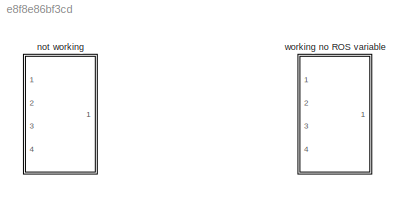
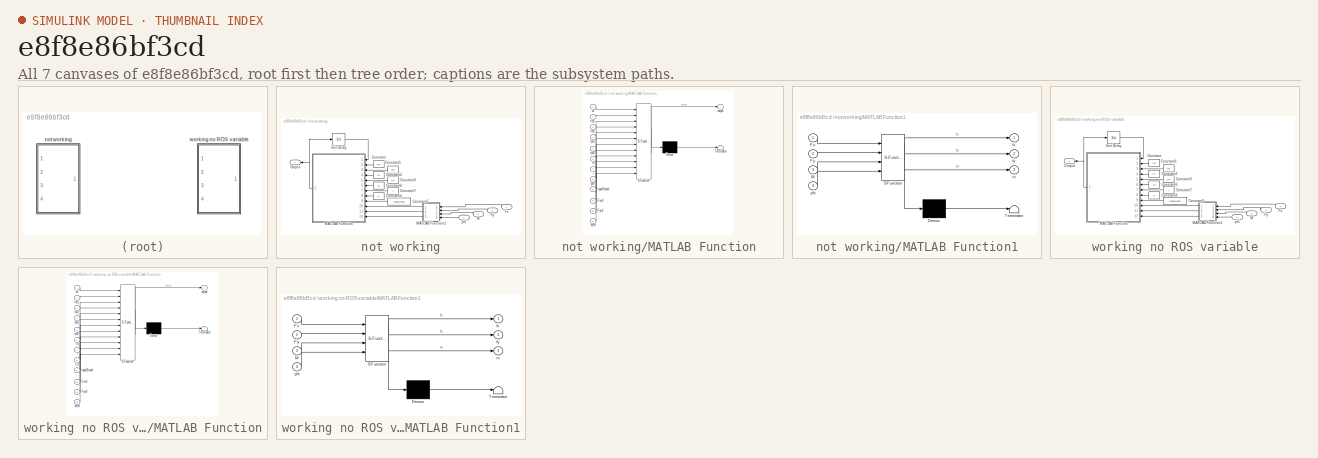
[diagram: thumbnail index - all 7 canvases of the model, root first then tree order]
MODEL slx_e8f8e86bf3cd
KIND model
BLOCK [SubSystem] not working
  Ports = [4, 1]
  RequestExecContextInheritance = off
BLOCK [Constant] not working/Constant
  Value = rx1
BLOCK [Constant] not working/Constant1
  Value = rx2
BLOCK [Constant] not working/Constant2
  Value = ry1
BLOCK [Constant] not working/Constant3
  Value = ry2
BLOCK [Constant] not working/Constant4
  Value = K
BLOCK [Constant] not working/Constant5
  Value = inputBound
BLOCK [Constant] not working/Constant6
  Value = m
BLOCK [Constant] not working/Constant7
  Value = I
BLOCK [Inport] not working/Fx
  IconDisplay = Port number
BLOCK [Inport] not working/Fy
  IconDisplay = Port number
  Port = 2
BLOCK [Inport] not working/M
  IconDisplay = Port number
  Port = 3
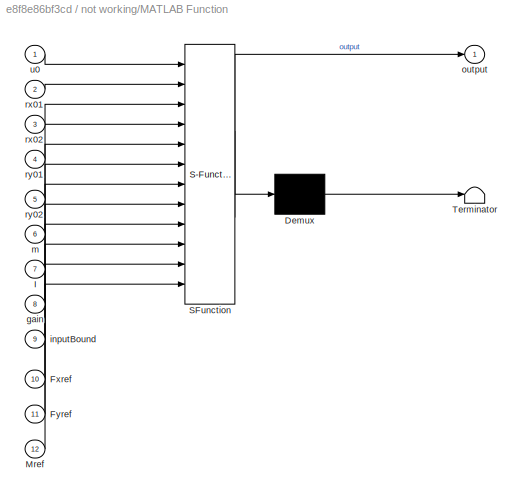
BLOCK [SubSystem] not working/MATLAB Function
  ErrorFcn = Stateflow.Translate.translate
  PermitHierarchicalResolution = ExplicitOnly
  Ports = [12, 1]
  RequestExecContextInheritance = off
  SFBlockType = MATLAB Function
  TreatAsAtomicUnit = on
BLOCK [Demux] not working/MATLAB Function/ Demux 
  Outputs = 1
  Ports = [1, 1]
BLOCK [S-Function] not working/MATLAB Function/ SFunction 
  EnableBusSupport = on
  FunctionName = sf_sfun
  PortCounts = [12 2]
  Ports = [12, 2]
  Tag = Stateflow S-Function minimizer_not_working 11
BLOCK [Terminator] not working/MATLAB Function/ Terminator 
BLOCK [Inport] not working/MATLAB Function/Fxref
  IconDisplay = Port number
  Port = 10
BLOCK [Inport] not working/MATLAB Function/Fyref
  IconDisplay = Port number
  Port = 11
BLOCK [Inport] not working/MATLAB Function/I
  IconDisplay = Port number
  Port = 7
BLOCK [Inport] not working/MATLAB Function/Mref
  IconDisplay = Port number
  Port = 12
BLOCK [Inport] not working/MATLAB Function/gain
  IconDisplay = Port number
  Port = 8
BLOCK [Inport] not working/MATLAB Function/inputBound
  IconDisplay = Port number
  Port = 9
BLOCK [Inport] not working/MATLAB Function/m
  IconDisplay = Port number
  Port = 6
BLOCK [Outport] not working/MATLAB Function/output
  IconDisplay = Port number
BLOCK [Inport] not working/MATLAB Function/rx01
  IconDisplay = Port number
  Port = 2
BLOCK [Inport] not working/MATLAB Function/rx02
  IconDisplay = Port number
  Port = 3
BLOCK [Inport] not working/MATLAB Function/ry01
  IconDisplay = Port number
  Port = 4
BLOCK [Inport] not working/MATLAB Function/ry02
  IconDisplay = Port number
  Port = 5
BLOCK [Inport] not working/MATLAB Function/u0
  IconDisplay = Port number
BLOCK [SubSystem] not working/MATLAB Function1
  ErrorFcn = Stateflow.Translate.translate
  PermitHierarchicalResolution = ExplicitOnly
  Ports = [4, 3]
  RequestExecContextInheritance = off
  SFBlockType = MATLAB Function
  TreatAsAtomicUnit = on
BLOCK [Demux] not working/MATLAB Function1/ Demux 
  Outputs = 1
  Ports = [1, 1]
BLOCK [S-Function] not working/MATLAB Function1/ SFunction 
  EnableBusSupport = on
  FunctionName = sf_sfun
  PortCounts = [4 4]
  Ports = [4, 4]
  Tag = Stateflow S-Function minimizer_not_working 12
BLOCK [Terminator] not working/MATLAB Function1/ Terminator 
BLOCK [Inport] not working/MATLAB Function1/Fx
  IconDisplay = Port number
BLOCK [Inport] not working/MATLAB Function1/Fy
  IconDisplay = Port number
  Port = 2
BLOCK [Inport] not working/MATLAB Function1/M
  IconDisplay = Port number
  Port = 3
BLOCK [Outport] not working/MATLAB Function1/fx
  IconDisplay = Port number
BLOCK [Outport] not working/MATLAB Function1/fy
  IconDisplay = Port number
  Port = 2
BLOCK [Outport] not working/MATLAB Function1/m
  IconDisplay = Port number
  Port = 3
BLOCK [Inport] not working/MATLAB Function1/phi
  IconDisplay = Port number
  Port = 4
BLOCK [Outport] not working/Output
  IconDisplay = Port number
BLOCK [UnitDelay] not working/Unit Delay
  InitialCondition = [0;0;0;0]
  InputProcessing = Elements as channels (sample based)
  SampleTime = -1
BLOCK [Inport] not working/phi
  IconDisplay = Port number
  Port = 4
BLOCK [SubSystem] working no ROS variable
  Ports = [4, 1]
  RequestExecContextInheritance = off
BLOCK [Constant] working no ROS variable/Constant
  Value = rx1
BLOCK [Constant] working no ROS variable/Constant1
  Value = rx2
BLOCK [Constant] working no ROS variable/Constant2
  Value = ry1
BLOCK [Constant] working no ROS variable/Constant3
  Value = ry2
BLOCK [Constant] working no ROS variable/Constant4
  Value = K
BLOCK [Constant] working no ROS variable/Constant5
  Value = inputBound
BLOCK [Constant] working no ROS variable/Constant6
  Value = m
BLOCK [Constant] working no ROS variable/Constant7
  Value = I
BLOCK [Inport] working no ROS variable/Fx
  IconDisplay = Port number
BLOCK [Inport] working no ROS variable/Fy
  IconDisplay = Port number
  Port = 2
BLOCK [Inport] working no ROS variable/M
  IconDisplay = Port number
  Port = 3
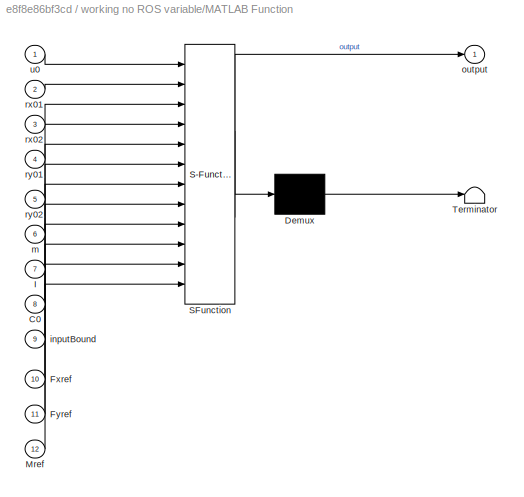
BLOCK [SubSystem] working no ROS variable/MATLAB Function
  ErrorFcn = Stateflow.Translate.translate
  PermitHierarchicalResolution = ExplicitOnly
  Ports = [12, 1]
  RequestExecContextInheritance = off
  SFBlockType = MATLAB Function
  TreatAsAtomicUnit = on
BLOCK [Demux] working no ROS variable/MATLAB Function/ Demux 
  Outputs = 1
  Ports = [1, 1]
BLOCK [S-Function] working no ROS variable/MATLAB Function/ SFunction 
  EnableBusSupport = on
  FunctionName = sf_sfun
  PortCounts = [12 2]
  Ports = [12, 2]
  Tag = Stateflow S-Function minimizer_not_working 3
BLOCK [Terminator] working no ROS variable/MATLAB Function/ Terminator 
BLOCK [Inport] working no ROS variable/MATLAB Function/C0
  IconDisplay = Port number
  Port = 8
BLOCK [Inport] working no ROS variable/MATLAB Function/Fxref
  IconDisplay = Port number
  Port = 10
BLOCK [Inport] working no ROS variable/MATLAB Function/Fyref
  IconDisplay = Port number
  Port = 11
BLOCK [Inport] working no ROS variable/MATLAB Function/I
  IconDisplay = Port number
  Port = 7
BLOCK [Inport] working no ROS variable/MATLAB Function/Mref
  IconDisplay = Port number
  Port = 12
BLOCK [Inport] working no ROS variable/MATLAB Function/inputBound
  IconDisplay = Port number
  Port = 9
BLOCK [Inport] working no ROS variable/MATLAB Function/m
  IconDisplay = Port number
  Port = 6
BLOCK [Outport] working no ROS variable/MATLAB Function/output
  IconDisplay = Port number
BLOCK [Inport] working no ROS variable/MATLAB Function/rx01
  IconDisplay = Port number
  Port = 2
BLOCK [Inport] working no ROS variable/MATLAB Function/rx02
  IconDisplay = Port number
  Port = 3
BLOCK [Inport] working no ROS variable/MATLAB Function/ry01
  IconDisplay = Port number
  Port = 4
BLOCK [Inport] working no ROS variable/MATLAB Function/ry02
  IconDisplay = Port number
  Port = 5
BLOCK [Inport] working no ROS variable/MATLAB Function/u0
  IconDisplay = Port number
BLOCK [SubSystem] working no ROS variable/MATLAB Function1
  ErrorFcn = Stateflow.Translate.translate
  PermitHierarchicalResolution = ExplicitOnly
  Ports = [4, 3]
  RequestExecContextInheritance = off
  SFBlockType = MATLAB Function
  TreatAsAtomicUnit = on
BLOCK [Demux] working no ROS variable/MATLAB Function1/ Demux 
  Outputs = 1
  Ports = [1, 1]
BLOCK [S-Function] working no ROS variable/MATLAB Function1/ SFunction 
  EnableBusSupport = on
  FunctionName = sf_sfun
  PortCounts = [4 4]
  Ports = [4, 4]
  Tag = Stateflow S-Function minimizer_not_working 4
BLOCK [Terminator] working no ROS variable/MATLAB Function1/ Terminator 
BLOCK [Inport] working no ROS variable/MATLAB Function1/Fx
  IconDisplay = Port number
BLOCK [Inport] working no ROS variable/MATLAB Function1/Fy
  IconDisplay = Port number
  Port = 2
BLOCK [Inport] working no ROS variable/MATLAB Function1/M
  IconDisplay = Port number
  Port = 3
BLOCK [Outport] working no ROS variable/MATLAB Function1/fx
  IconDisplay = Port number
BLOCK [Outport] working no ROS variable/MATLAB Function1/fy
  IconDisplay = Port number
  Port = 2
BLOCK [Outport] working no ROS variable/MATLAB Function1/m
  IconDisplay = Port number
  Port = 3
BLOCK [Inport] working no ROS variable/MATLAB Function1/phi
  IconDisplay = Port number
  Port = 4
BLOCK [Outport] working no ROS variable/Output
  IconDisplay = Port number
BLOCK [UnitDelay] working no ROS variable/Unit Delay
  InitialCondition = [0;0;0;0]
  InputProcessing = Elements as channels (sample based)
  SampleTime = -1
BLOCK [Inport] working no ROS variable/phi
  IconDisplay = Port number
  Port = 4
LINE not working/Constant1:1 -> not working/MATLAB Function:3
LINE not working/Constant2:1 -> not working/MATLAB Function:4
LINE not working/Constant3:1 -> not working/MATLAB Function:5
LINE not working/Constant4:1 -> not working/MATLAB Function:8
LINE not working/Constant5:1 -> not working/MATLAB Function:9
LINE not working/Constant6:1 -> not working/MATLAB Function:6
LINE not working/Constant7:1 -> not working/MATLAB Function:7
LINE not working/Constant:1 -> not working/MATLAB Function:2
LINE not working/Fx:1 -> not working/MATLAB Function1:1
LINE not working/Fy:1 -> not working/MATLAB Function1:2
LINE not working/M:1 -> not working/MATLAB Function1:3
LINE not working/MATLAB Function1:1 -> not working/MATLAB Function:10
LINE not working/MATLAB Function1:2 -> not working/MATLAB Function:11
LINE not working/MATLAB Function1:3 -> not working/MATLAB Function:12
NET not working/MATLAB Function:1 -> not working/Output:1, not working/Unit Delay:1
LINE not working/Unit Delay:1 -> not working/MATLAB Function:1
LINE not working/phi:1 -> not working/MATLAB Function1:4
LINE working no ROS variable/Constant1:1 -> working no ROS variable/MATLAB Function:3
LINE working no ROS variable/Constant2:1 -> working no ROS variable/MATLAB Function:4
LINE working no ROS variable/Constant3:1 -> working no ROS variable/MATLAB Function:5
LINE working no ROS variable/Constant4:1 -> working no ROS variable/MATLAB Function:8
LINE working no ROS variable/Constant5:1 -> working no ROS variable/MATLAB Function:9
LINE working no ROS variable/Constant6:1 -> working no ROS variable/MATLAB Function:6
LINE working no ROS variable/Constant7:1 -> working no ROS variable/MATLAB Function:7
LINE working no ROS variable/Constant:1 -> working no ROS variable/MATLAB Function:2
LINE working no ROS variable/Fx:1 -> working no ROS variable/MATLAB Function1:1
LINE working no ROS variable/Fy:1 -> working no ROS variable/MATLAB Function1:2
LINE working no ROS variable/M:1 -> working no ROS variable/MATLAB Function1:3
LINE working no ROS variable/MATLAB Function1:1 -> working no ROS variable/MATLAB Function:10
LINE working no ROS variable/MATLAB Function1:2 -> working no ROS variable/MATLAB Function:11
LINE working no ROS variable/MATLAB Function1:3 -> working no ROS variable/MATLAB Function:12
NET working no ROS variable/MATLAB Function:1 -> working no ROS variable/Output:1, working no ROS variable/Unit Delay:1
LINE working no ROS variable/Unit Delay:1 -> working no ROS variable/MATLAB Function:1
LINE working no ROS variable/phi:1 -> working no ROS variable/MATLAB Function1:4
note: NET lines group one-source signal fan-out (src -> all destinations, sorted); 1:1 wires keep LINE
